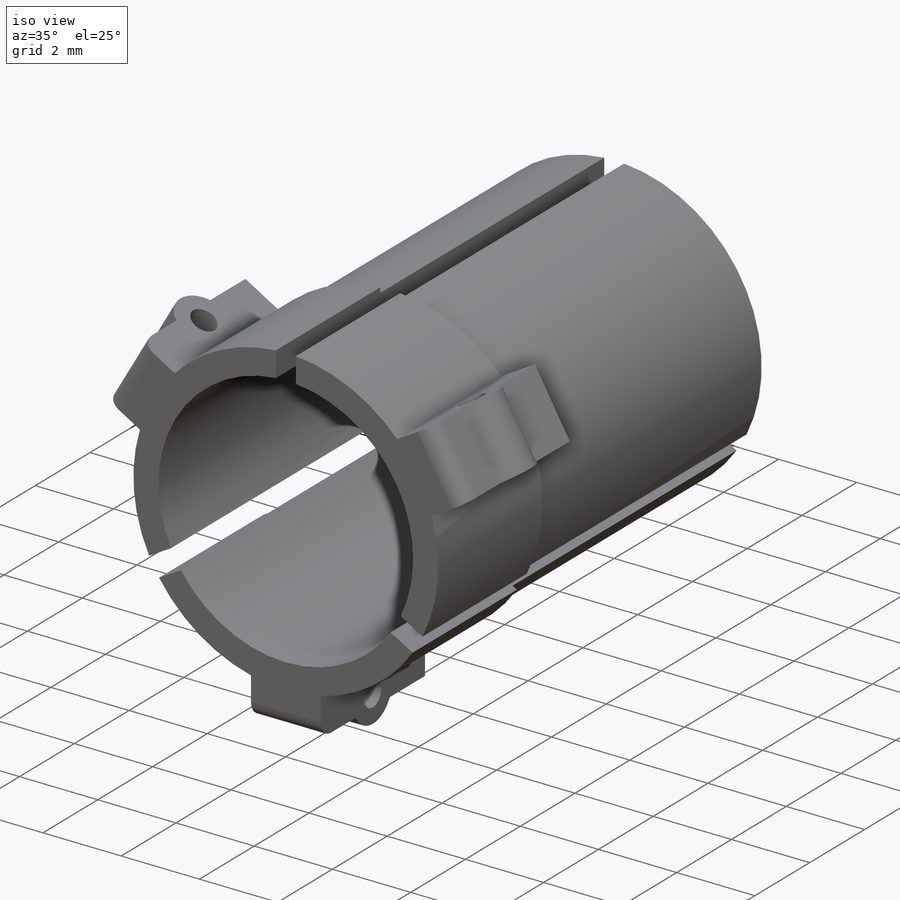
[diagram: iso view]
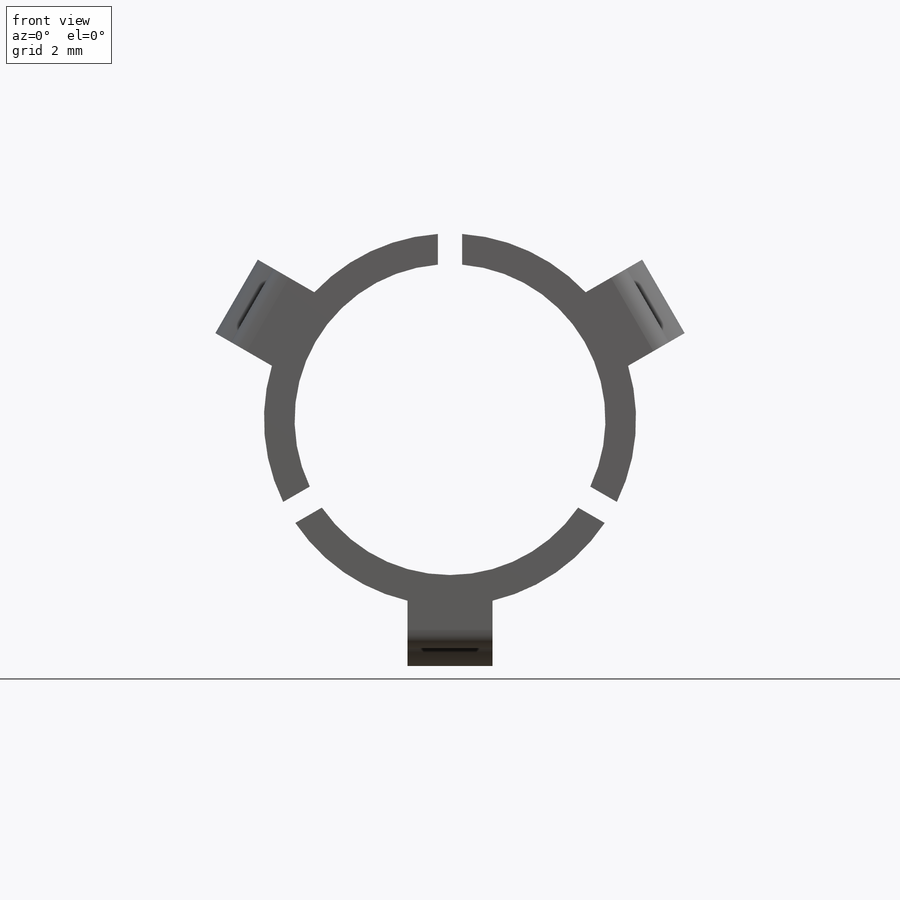
[diagram: front view]
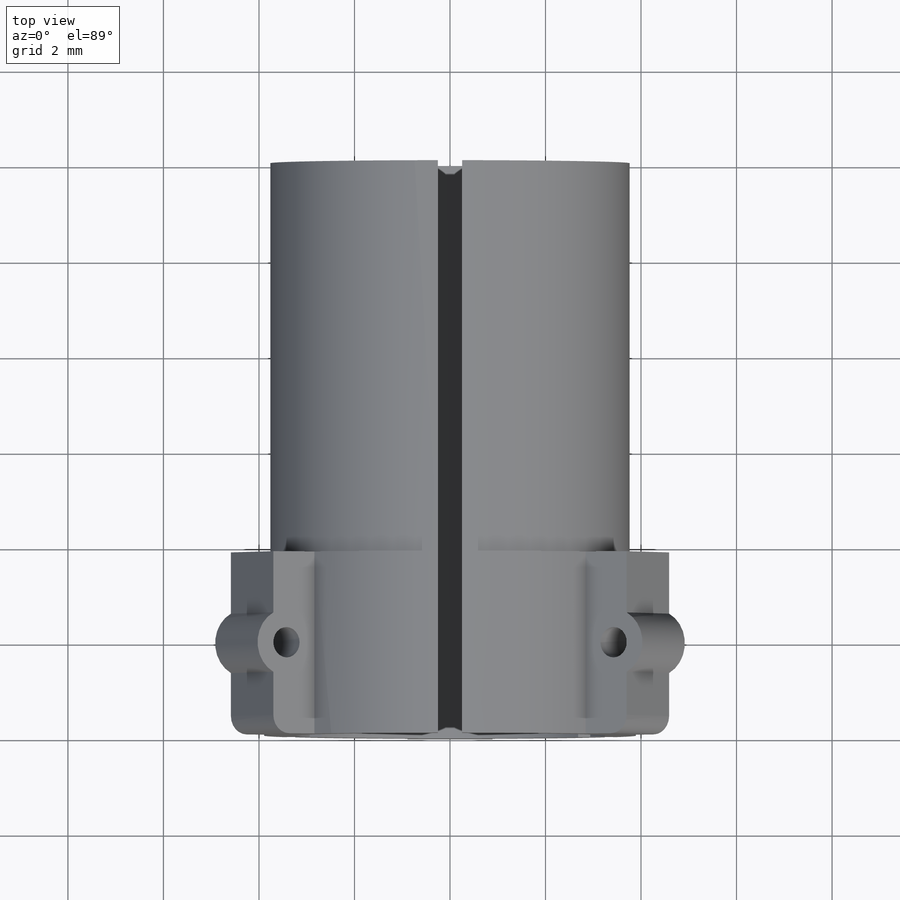
[diagram: top view]
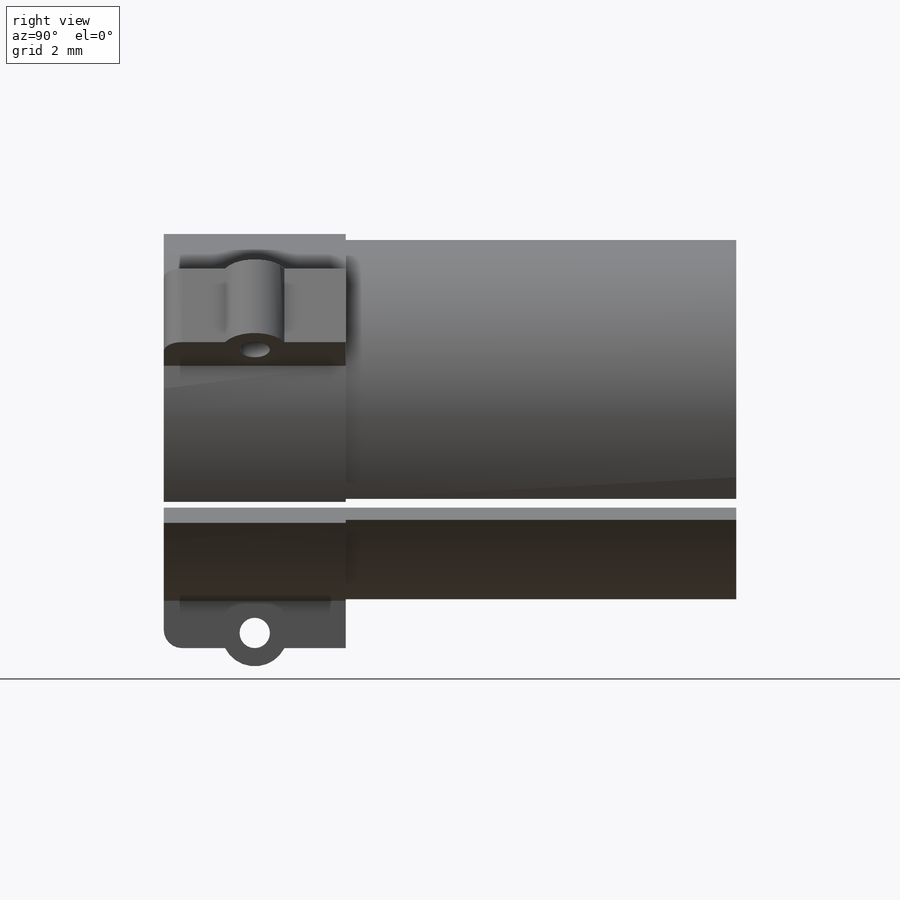
[diagram: right view]
SOLIDWORKS PART (.sldprt)
format: sldprt  version: not decoded by parser v0  size: 664,576 bytes
history: native  units: mm
features: sketch x9, extrude x6, fillet x3, cut_extrude x3, material x1 (+11 scaffold rows collapsed)
feature tree (33):
  scaffold x11  (default folders/planes/origin — collapsed)
  material  "Material <not specified>"
  sketch  "Sketch1"  dims[c1.D1=0.254mm c1.D2=0.508mm c2.D1=3.0]
  extrude  "Boss-Extrude1"  Depth=11.9888mm
  sketch  "Sketch2"  dims[c1.D1=0.127mm c2.D1=3.0]
  extrude  "Boss-Extrude2"  Depth=3.81mm
  sketch  "Sketch4"  dims[c1.D2=~3.89627mm c1.D1=0.889mm c2.D2=1.778mm c2.D1=0.889mm c3.D2=3.0 c3.D3=3.0]
  extrude  "Boss-Extrude3"  Depth=3.81mm
  fillet  "Fillet1"  Radius=0.381mm
  fillet  "Fillet2"  Radius=0.381mm
  fillet  "Fillet3"  Radius=0.381mm
  sketch  "Sketch5"  dims[D1=0.635mm D2=1.905mm D3=0.381mm]
  extrude  "Boss-Extrude4"  Depth=1.778mm
  cut_extrude  "Cut-Extrude1"  [1 undecoded]
  sketch  "Sketch5<6>"  dims[D1=1.778mm]
  sketch  "Sketch6"  dims[c1.D1=0.635mm c1.D2=1.905mm c2.D1=0.381mm]
  extrude  "Boss-Extrude5"  Depth=1.778mm
  cut_extrude  "Cut-Extrude2"  [1 undecoded]
  sketch  "Sketch6<3>"
  sketch  "Sketch7"  dims[c1.D1=0.635mm c1.D2=1.905mm c2.D1=0.381mm]
  extrude  "Boss-Extrude6"  Depth=1.778mm
  cut_extrude  "Cut-Extrude3"  [1 undecoded]
  sketch  "Sketch7<3>"
decode coverage: 16 of 21 modeling features carry decoded parameters
note: ~ marks probable driven/reference dimensions
note: 3 parameter values undecoded
summary: no parameter record found for 3 features
note: suppression state not decoded; provenance and decode notes live in map.json
